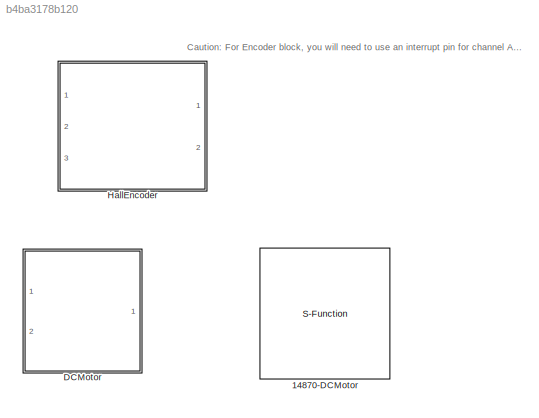
MODEL slx_b4ba3178b120
KIND library
CONFIG AbsTol = auto
CONFIG EnableMultiTasking = off
CONFIG FixedStep = auto
CONFIG MaxStep = auto
CONFIG MinStep = auto
CONFIG RelTol = 1e-3
CONFIG SampleTimeConstraint = Unconstrained
CONFIG Solver = VariableStepAuto
CONFIG SolverName = VariableStepAuto
CONFIG StartTime = 0.0
CONFIG StopTime = 10.0
BLOCK [S-Function] 14870-DCMotor
  CopyFcn = set_param(gcbh,'LinkStatus','none')
  EnableBusSupport = off
  FunctionName = sfunc_max14870
  InitFcn = try, set_param(gcb,'FunctionName','sfunc_max14870'), end
  OpenFcn = sfunctionwizard(gcbh)
  Ports = [2]
  PreSaveFcn = try, set_param(gcb,'FunctionName','sfunc_max14870'), end
  SFcnIsStateOwnerBlock = off
  SFunctionDeploymentMode = off
  SFunctionModules = sfunc_max14870_wrapper
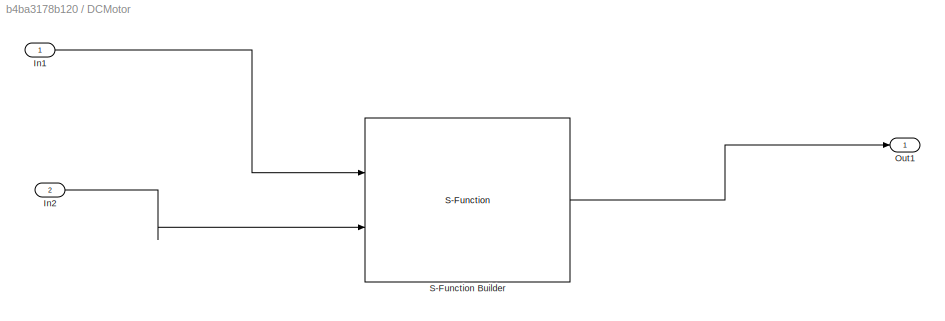
BLOCK [SubSystem] DCMotor
  Ports = [2, 1]
  RequestExecContextInheritance = off
BLOCK [Inport] DCMotor/In1
  IconDisplay = Port number
BLOCK [Inport] DCMotor/In2
  IconDisplay = Port number
  Port = 2
BLOCK [Outport] DCMotor/Out1
  IconDisplay = Port number
BLOCK [S-Function] DCMotor/S-Function Builder
  CopyFcn = set_param(gcbh,'LinkStatus','none')
  EnableBusSupport = off
  FunctionName = sfunc_dcmotor
  InitFcn = try, set_param(gcb,'FunctionName','sfunc_dcmotor'), end
  OpenFcn = sfunctionwizard(gcbh)
  Ports = [2, 1]
  PreSaveFcn = try, set_param(gcb,'FunctionName','sfunc_dcmotor'), end
  SFcnIsStateOwnerBlock = off
  SFunctionDeploymentMode = off
  SFunctionModules = sfunc_dcmotor_wrapper
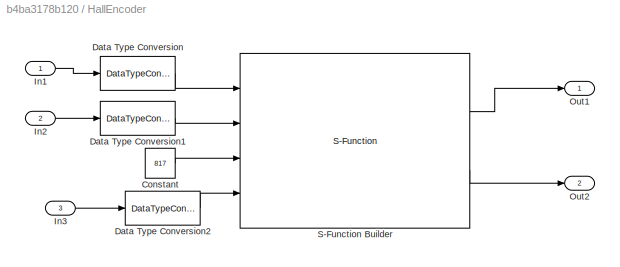
BLOCK [SubSystem] HallEncoder
  Ports = [3, 2]
  RequestExecContextInheritance = off
BLOCK [Constant] HallEncoder/Constant
  OutDataTypeStr = uint16
  Value = 817
BLOCK [DataTypeConversion] HallEncoder/Data Type Conversion
  OutDataTypeStr = uint8
  RndMeth = Floor
  SaturateOnIntegerOverflow = off
BLOCK [DataTypeConversion] HallEncoder/Data Type Conversion1
  OutDataTypeStr = uint8
  RndMeth = Floor
  SaturateOnIntegerOverflow = off
BLOCK [DataTypeConversion] HallEncoder/Data Type Conversion2
  OutDataTypeStr = uint16
  RndMeth = Floor
  SaturateOnIntegerOverflow = off
BLOCK [Inport] HallEncoder/In1
  IconDisplay = Port number
BLOCK [Inport] HallEncoder/In2
  IconDisplay = Port number
  Port = 2
BLOCK [Inport] HallEncoder/In3
  IconDisplay = Port number
  Port = 3
BLOCK [Outport] HallEncoder/Out1
  IconDisplay = Port number
BLOCK [Outport] HallEncoder/Out2
  IconDisplay = Port number
  Port = 2
BLOCK [S-Function] HallEncoder/S-Function Builder
  CopyFcn = set_param(gcbh,'LinkStatus','none')
  EnableBusSupport = off
  FunctionName = sfunc_hencoder
  InitFcn = try, set_param(gcb,'FunctionName','sfunc_hencoder'), end
  OpenFcn = sfunctionwizard(gcbh)
  Ports = [4, 2]
  PreSaveFcn = try, set_param(gcb,'FunctionName','sfunc_hencoder'), end
  SFcnIsStateOwnerBlock = off
  SFunctionDeploymentMode = off
  SFunctionModules = sfunc_hencoder_wrapper
ANNOTATION (root): Caution: For Encoder block, you will need to use an interrupt pin for channel A. However, you cannot use pin 2 because DCMotor shields use pin 2 for interrupt function. Also, there are other pins cannot be used if motor shield is on the arduino board. These pins are: 4, 6, 7, 8, 9, 10, 12
LINE DCMotor/In1:1 -> DCMotor/S-Function Builder:1
LINE DCMotor/In2:1 -> DCMotor/S-Function Builder:2
LINE DCMotor/S-Function Builder:1 -> DCMotor/Out1:1
LINE HallEncoder/Constant:1 -> HallEncoder/S-Function Builder:3
LINE HallEncoder/Data Type Conversion1:1 -> HallEncoder/S-Function Builder:2
LINE HallEncoder/Data Type Conversion2:1 -> HallEncoder/S-Function Builder:4
LINE HallEncoder/Data Type Conversion:1 -> HallEncoder/S-Function Builder:1
LINE HallEncoder/In1:1 -> HallEncoder/Data Type Conversion:1
LINE HallEncoder/In2:1 -> HallEncoder/Data Type Conversion1:1
LINE HallEncoder/In3:1 -> HallEncoder/Data Type Conversion2:1
LINE HallEncoder/S-Function Builder:1 -> HallEncoder/Out1:1
LINE HallEncoder/S-Function Builder:2 -> HallEncoder/Out2:1
